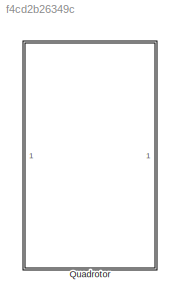
MODEL slx_f4cd2b26349c
KIND model
CONFIG AbsTol = auto
CONFIG EnableMultiTasking = off
CONFIG FixedStep = 1e-4
CONFIG MaxStep = auto
CONFIG MinStep = auto
CONFIG RelTol = 1e-3
CONFIG SampleTimeConstraint = Unconstrained
CONFIG SolverName = ode3
CONFIG StartTime = 0.0
CONFIG StopTime = 10.0
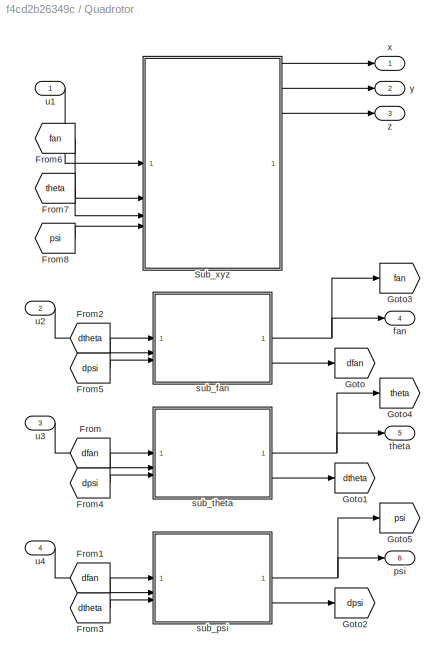
BLOCK [SubSystem] Quadrotor
BLOCK [From] Quadrotor/From
  GotoTag = dfan
BLOCK [From] Quadrotor/From1
  GotoTag = dfan
BLOCK [From] Quadrotor/From2
  GotoTag = dtheta
BLOCK [From] Quadrotor/From3
  GotoTag = dtheta
BLOCK [From] Quadrotor/From4
  GotoTag = dpsi
BLOCK [From] Quadrotor/From5
  GotoTag = dpsi
BLOCK [From] Quadrotor/From6
  GotoTag = fan
BLOCK [From] Quadrotor/From7
  GotoTag = theta
BLOCK [From] Quadrotor/From8
  GotoTag = psi
BLOCK [Goto] Quadrotor/Goto
  GotoTag = dfan
BLOCK [Goto] Quadrotor/Goto1
  GotoTag = dtheta
BLOCK [Goto] Quadrotor/Goto2
  GotoTag = dpsi
BLOCK [Goto] Quadrotor/Goto3
  GotoTag = fan
BLOCK [Goto] Quadrotor/Goto4
  GotoTag = theta
BLOCK [Goto] Quadrotor/Goto5
  GotoTag = psi
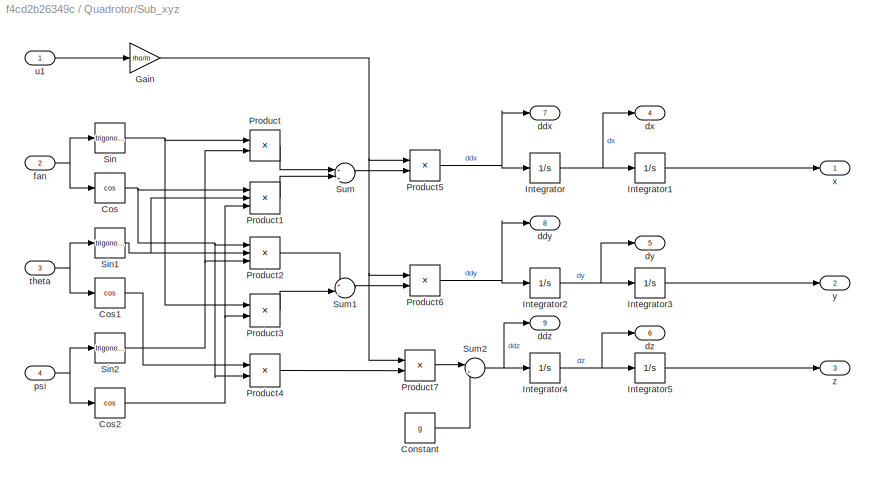
BLOCK [SubSystem] Quadrotor/Sub_xyz
BLOCK [Constant] Quadrotor/Sub_xyz/Constant
  Value = g
BLOCK [Trigonometry] Quadrotor/Sub_xyz/Cos
  Operator = cos
BLOCK [Trigonometry] Quadrotor/Sub_xyz/Cos1
  Operator = cos
BLOCK [Trigonometry] Quadrotor/Sub_xyz/Cos2
  Operator = cos
BLOCK [Gain] Quadrotor/Sub_xyz/Gain
  Gain = rho/m
BLOCK [Integrator] Quadrotor/Sub_xyz/Integrator
BLOCK [Integrator] Quadrotor/Sub_xyz/Integrator1
BLOCK [Integrator] Quadrotor/Sub_xyz/Integrator2
BLOCK [Integrator] Quadrotor/Sub_xyz/Integrator3
BLOCK [Integrator] Quadrotor/Sub_xyz/Integrator4
BLOCK [Integrator] Quadrotor/Sub_xyz/Integrator5
BLOCK [Product] Quadrotor/Sub_xyz/Product
BLOCK [Product] Quadrotor/Sub_xyz/Product1
  Inputs = 3
BLOCK [Product] Quadrotor/Sub_xyz/Product2
  Inputs = 3
BLOCK [Product] Quadrotor/Sub_xyz/Product3
BLOCK [Product] Quadrotor/Sub_xyz/Product4
BLOCK [Product] Quadrotor/Sub_xyz/Product5
BLOCK [Product] Quadrotor/Sub_xyz/Product6
BLOCK [Product] Quadrotor/Sub_xyz/Product7
BLOCK [Trigonometry] Quadrotor/Sub_xyz/Sin
BLOCK [Trigonometry] Quadrotor/Sub_xyz/Sin1
BLOCK [Trigonometry] Quadrotor/Sub_xyz/Sin2
BLOCK [Sum] Quadrotor/Sub_xyz/Sum
  Inputs = +|+
BLOCK [Sum] Quadrotor/Sub_xyz/Sum1
  Inputs = +|-
BLOCK [Sum] Quadrotor/Sub_xyz/Sum2
  Inputs = |+-
BLOCK [Outport] Quadrotor/Sub_xyz/ddx
  Port = 7
BLOCK [Outport] Quadrotor/Sub_xyz/ddy
  Port = 8
BLOCK [Outport] Quadrotor/Sub_xyz/ddz
  Port = 9
BLOCK [Outport] Quadrotor/Sub_xyz/dx
  Port = 4
BLOCK [Outport] Quadrotor/Sub_xyz/dy
  Port = 5
BLOCK [Outport] Quadrotor/Sub_xyz/dz
  Port = 6
BLOCK [Inport] Quadrotor/Sub_xyz/fan
  Port = 2
BLOCK [Inport] Quadrotor/Sub_xyz/psi
  Port = 4
BLOCK [Inport] Quadrotor/Sub_xyz/theta
  Port = 3
BLOCK [Inport] Quadrotor/Sub_xyz/u1
BLOCK [Outport] Quadrotor/Sub_xyz/x
BLOCK [Outport] Quadrotor/Sub_xyz/y
  Port = 2
BLOCK [Outport] Quadrotor/Sub_xyz/z
  Port = 3
BLOCK [Outport] Quadrotor/fan
  Port = 4
BLOCK [Outport] Quadrotor/psi
  Port = 6
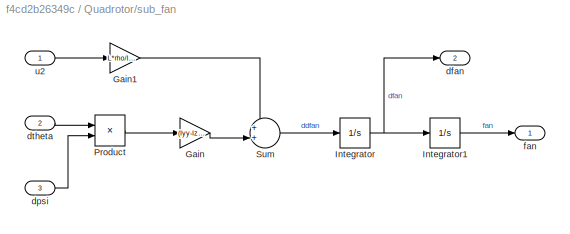
BLOCK [SubSystem] Quadrotor/sub_fan
BLOCK [Gain] Quadrotor/sub_fan/Gain
  Gain = (Iyy-Izz)/Ixx
BLOCK [Gain] Quadrotor/sub_fan/Gain1
  Gain = L*rho/Ixx
BLOCK [Integrator] Quadrotor/sub_fan/Integrator
BLOCK [Integrator] Quadrotor/sub_fan/Integrator1
BLOCK [Product] Quadrotor/sub_fan/Product
BLOCK [Sum] Quadrotor/sub_fan/Sum
  Inputs = ++|
BLOCK [Outport] Quadrotor/sub_fan/dfan
  Port = 2
BLOCK [Inport] Quadrotor/sub_fan/dpsi
  Port = 3
BLOCK [Inport] Quadrotor/sub_fan/dtheta
  Port = 2
BLOCK [Outport] Quadrotor/sub_fan/fan
BLOCK [Inport] Quadrotor/sub_fan/u2
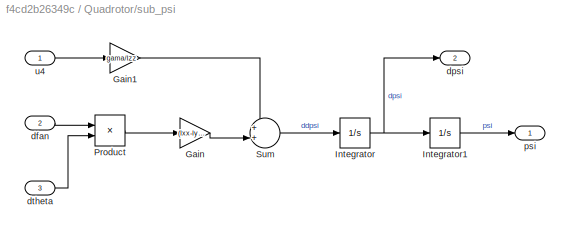
BLOCK [SubSystem] Quadrotor/sub_psi
BLOCK [Gain] Quadrotor/sub_psi/Gain
  Gain = (Ixx-Iyy)/Izz
BLOCK [Gain] Quadrotor/sub_psi/Gain1
  Gain = gama/Izz
BLOCK [Integrator] Quadrotor/sub_psi/Integrator
BLOCK [Integrator] Quadrotor/sub_psi/Integrator1
BLOCK [Product] Quadrotor/sub_psi/Product
BLOCK [Sum] Quadrotor/sub_psi/Sum
  Inputs = ++|
BLOCK [Inport] Quadrotor/sub_psi/dfan
  Port = 2
BLOCK [Outport] Quadrotor/sub_psi/dpsi
  Port = 2
BLOCK [Inport] Quadrotor/sub_psi/dtheta
  Port = 3
BLOCK [Outport] Quadrotor/sub_psi/psi
BLOCK [Inport] Quadrotor/sub_psi/u4
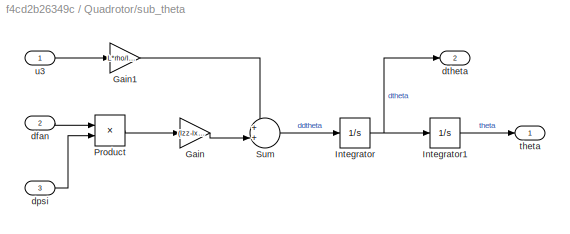
BLOCK [SubSystem] Quadrotor/sub_theta
BLOCK [Gain] Quadrotor/sub_theta/Gain
  Gain = (Izz-Ixx)/Iyy
BLOCK [Gain] Quadrotor/sub_theta/Gain1
  Gain = L*rho/Iyy
BLOCK [Integrator] Quadrotor/sub_theta/Integrator
BLOCK [Integrator] Quadrotor/sub_theta/Integrator1
BLOCK [Product] Quadrotor/sub_theta/Product
BLOCK [Sum] Quadrotor/sub_theta/Sum
  Inputs = ++|
BLOCK [Inport] Quadrotor/sub_theta/dfan
  Port = 2
BLOCK [Inport] Quadrotor/sub_theta/dpsi
  Port = 3
BLOCK [Outport] Quadrotor/sub_theta/dtheta
  Port = 2
BLOCK [Outport] Quadrotor/sub_theta/theta
BLOCK [Inport] Quadrotor/sub_theta/u3
BLOCK [Outport] Quadrotor/theta
  Port = 5
BLOCK [Inport] Quadrotor/u1
BLOCK [Inport] Quadrotor/u2
  Port = 2
BLOCK [Inport] Quadrotor/u3
  Port = 3
BLOCK [Inport] Quadrotor/u4
  Port = 4
BLOCK [Outport] Quadrotor/x
BLOCK [Outport] Quadrotor/y
  Port = 2
BLOCK [Outport] Quadrotor/z
  Port = 3
LINE Quadrotor/From1:1 -> Quadrotor/sub_psi:2
LINE Quadrotor/From2:1 -> Quadrotor/sub_fan:2
LINE Quadrotor/From3:1 -> Quadrotor/sub_psi:3
LINE Quadrotor/From4:1 -> Quadrotor/sub_theta:3
LINE Quadrotor/From5:1 -> Quadrotor/sub_fan:3
LINE Quadrotor/From6:1 -> Quadrotor/Sub_xyz:2
LINE Quadrotor/From7:1 -> Quadrotor/Sub_xyz:3
LINE Quadrotor/From8:1 -> Quadrotor/Sub_xyz:4
LINE Quadrotor/From:1 -> Quadrotor/sub_theta:2
LINE Quadrotor/Sub_xyz/Constant:1 -> Quadrotor/Sub_xyz/Sum2:2
LINE Quadrotor/Sub_xyz/Cos1:1 -> Quadrotor/Sub_xyz/Product4:1
NET Quadrotor/Sub_xyz/Cos2:1 -> Quadrotor/Sub_xyz/Product1:3, Quadrotor/Sub_xyz/Product3:2
NET Quadrotor/Sub_xyz/Cos:1 -> Quadrotor/Sub_xyz/Product1:1, Quadrotor/Sub_xyz/Product2:1, Quadrotor/Sub_xyz/Product4:2
NET Quadrotor/Sub_xyz/Gain:1 -> Quadrotor/Sub_xyz/Product5:1, Quadrotor/Sub_xyz/Product6:1, Quadrotor/Sub_xyz/Product7:1
LINE Quadrotor/Sub_xyz/Integrator1:1 -> Quadrotor/Sub_xyz/x:1
NET Quadrotor/Sub_xyz/Integrator2:1 -> Quadrotor/Sub_xyz/Integrator3:1, Quadrotor/Sub_xyz/dy:1
LINE Quadrotor/Sub_xyz/Integrator3:1 -> Quadrotor/Sub_xyz/y:1
NET Quadrotor/Sub_xyz/Integrator4:1 -> Quadrotor/Sub_xyz/Integrator5:1, Quadrotor/Sub_xyz/dz:1
LINE Quadrotor/Sub_xyz/Integrator5:1 -> Quadrotor/Sub_xyz/z:1
NET Quadrotor/Sub_xyz/Integrator:1 -> Quadrotor/Sub_xyz/Integrator1:1, Quadrotor/Sub_xyz/dx:1
LINE Quadrotor/Sub_xyz/Product1:1 -> Quadrotor/Sub_xyz/Sum:2
LINE Quadrotor/Sub_xyz/Product2:1 -> Quadrotor/Sub_xyz/Sum1:1
LINE Quadrotor/Sub_xyz/Product3:1 -> Quadrotor/Sub_xyz/Sum1:2
LINE Quadrotor/Sub_xyz/Product4:1 -> Quadrotor/Sub_xyz/Product7:2
NET Quadrotor/Sub_xyz/Product5:1 -> Quadrotor/Sub_xyz/Integrator:1, Quadrotor/Sub_xyz/ddx:1
NET Quadrotor/Sub_xyz/Product6:1 -> Quadrotor/Sub_xyz/Integrator2:1, Quadrotor/Sub_xyz/ddy:1
LINE Quadrotor/Sub_xyz/Product7:1 -> Quadrotor/Sub_xyz/Sum2:1
LINE Quadrotor/Sub_xyz/Product:1 -> Quadrotor/Sub_xyz/Sum:1
NET Quadrotor/Sub_xyz/Sin1:1 -> Quadrotor/Sub_xyz/Product1:2, Quadrotor/Sub_xyz/Product2:2
NET Quadrotor/Sub_xyz/Sin2:1 -> Quadrotor/Sub_xyz/Product2:3, Quadrotor/Sub_xyz/Product:2
NET Quadrotor/Sub_xyz/Sin:1 -> Quadrotor/Sub_xyz/Product3:1, Quadrotor/Sub_xyz/Product:1
LINE Quadrotor/Sub_xyz/Sum1:1 -> Quadrotor/Sub_xyz/Product6:2
NET Quadrotor/Sub_xyz/Sum2:1 -> Quadrotor/Sub_xyz/Integrator4:1, Quadrotor/Sub_xyz/ddz:1
LINE Quadrotor/Sub_xyz/Sum:1 -> Quadrotor/Sub_xyz/Product5:2
NET Quadrotor/Sub_xyz/fan:1 -> Quadrotor/Sub_xyz/Cos:1, Quadrotor/Sub_xyz/Sin:1
NET Quadrotor/Sub_xyz/psi:1 -> Quadrotor/Sub_xyz/Cos2:1, Quadrotor/Sub_xyz/Sin2:1
NET Quadrotor/Sub_xyz/theta:1 -> Quadrotor/Sub_xyz/Cos1:1, Quadrotor/Sub_xyz/Sin1:1
LINE Quadrotor/Sub_xyz/u1:1 -> Quadrotor/Sub_xyz/Gain:1
LINE Quadrotor/Sub_xyz:1 -> Quadrotor/x:1
LINE Quadrotor/Sub_xyz:2 -> Quadrotor/y:1
LINE Quadrotor/Sub_xyz:3 -> Quadrotor/z:1
LINE Quadrotor/sub_fan/Gain1:1 -> Quadrotor/sub_fan/Sum:1
LINE Quadrotor/sub_fan/Gain:1 -> Quadrotor/sub_fan/Sum:2
LINE Quadrotor/sub_fan/Integrator1:1 -> Quadrotor/sub_fan/fan:1
NET Quadrotor/sub_fan/Integrator:1 -> Quadrotor/sub_fan/Integrator1:1, Quadrotor/sub_fan/dfan:1
LINE Quadrotor/sub_fan/Product:1 -> Quadrotor/sub_fan/Gain:1
LINE Quadrotor/sub_fan/Sum:1 -> Quadrotor/sub_fan/Integrator:1
LINE Quadrotor/sub_fan/dpsi:1 -> Quadrotor/sub_fan/Product:2
LINE Quadrotor/sub_fan/dtheta:1 -> Quadrotor/sub_fan/Product:1
LINE Quadrotor/sub_fan/u2:1 -> Quadrotor/sub_fan/Gain1:1
NET Quadrotor/sub_fan:1 -> Quadrotor/Goto3:1, Quadrotor/fan:1
LINE Quadrotor/sub_fan:2 -> Quadrotor/Goto:1
LINE Quadrotor/sub_psi/Gain1:1 -> Quadrotor/sub_psi/Sum:1
LINE Quadrotor/sub_psi/Gain:1 -> Quadrotor/sub_psi/Sum:2
LINE Quadrotor/sub_psi/Integrator1:1 -> Quadrotor/sub_psi/psi:1
NET Quadrotor/sub_psi/Integrator:1 -> Quadrotor/sub_psi/Integrator1:1, Quadrotor/sub_psi/dpsi:1
LINE Quadrotor/sub_psi/Product:1 -> Quadrotor/sub_psi/Gain:1
LINE Quadrotor/sub_psi/Sum:1 -> Quadrotor/sub_psi/Integrator:1
LINE Quadrotor/sub_psi/dfan:1 -> Quadrotor/sub_psi/Product:1
LINE Quadrotor/sub_psi/dtheta:1 -> Quadrotor/sub_psi/Product:2
LINE Quadrotor/sub_psi/u4:1 -> Quadrotor/sub_psi/Gain1:1
NET Quadrotor/sub_psi:1 -> Quadrotor/Goto5:1, Quadrotor/psi:1
LINE Quadrotor/sub_psi:2 -> Quadrotor/Goto2:1
LINE Quadrotor/sub_theta/Gain1:1 -> Quadrotor/sub_theta/Sum:1
LINE Quadrotor/sub_theta/Gain:1 -> Quadrotor/sub_theta/Sum:2
LINE Quadrotor/sub_theta/Integrator1:1 -> Quadrotor/sub_theta/theta:1
NET Quadrotor/sub_theta/Integrator:1 -> Quadrotor/sub_theta/Integrator1:1, Quadrotor/sub_theta/dtheta:1
LINE Quadrotor/sub_theta/Product:1 -> Quadrotor/sub_theta/Gain:1
LINE Quadrotor/sub_theta/Sum:1 -> Quadrotor/sub_theta/Integrator:1
LINE Quadrotor/sub_theta/dfan:1 -> Quadrotor/sub_theta/Product:1
LINE Quadrotor/sub_theta/dpsi:1 -> Quadrotor/sub_theta/Product:2
LINE Quadrotor/sub_theta/u3:1 -> Quadrotor/sub_theta/Gain1:1
NET Quadrotor/sub_theta:1 -> Quadrotor/Goto4:1, Quadrotor/theta:1
LINE Quadrotor/sub_theta:2 -> Quadrotor/Goto1:1
LINE Quadrotor/u1:1 -> Quadrotor/Sub_xyz:1
LINE Quadrotor/u2:1 -> Quadrotor/sub_fan:1
LINE Quadrotor/u3:1 -> Quadrotor/sub_theta:1
LINE Quadrotor/u4:1 -> Quadrotor/sub_psi:1
note: NET lines group one-source signal fan-out (src -> all destinations, sorted); 1:1 wires keep LINE
